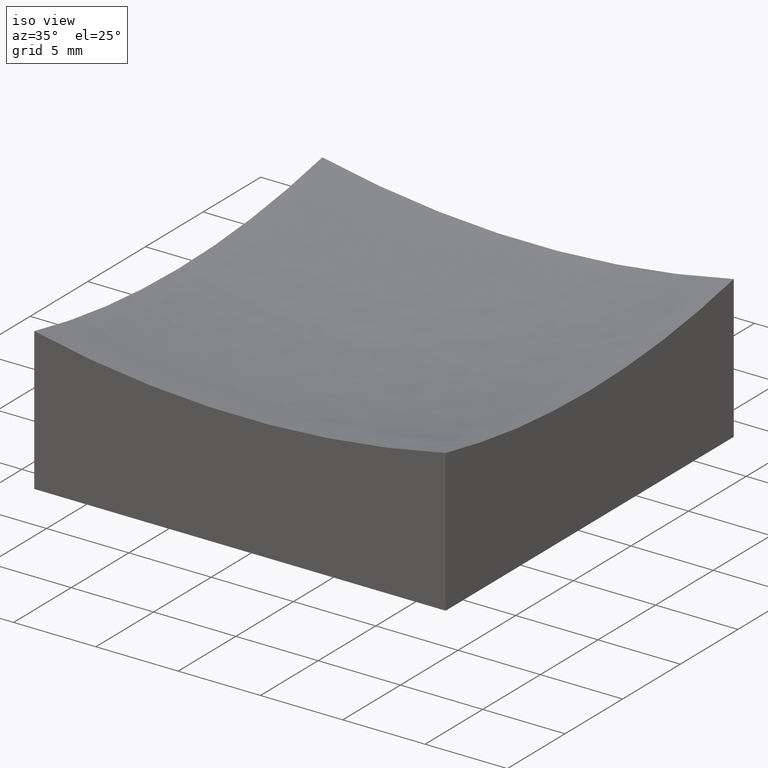
[diagram: clean part render]
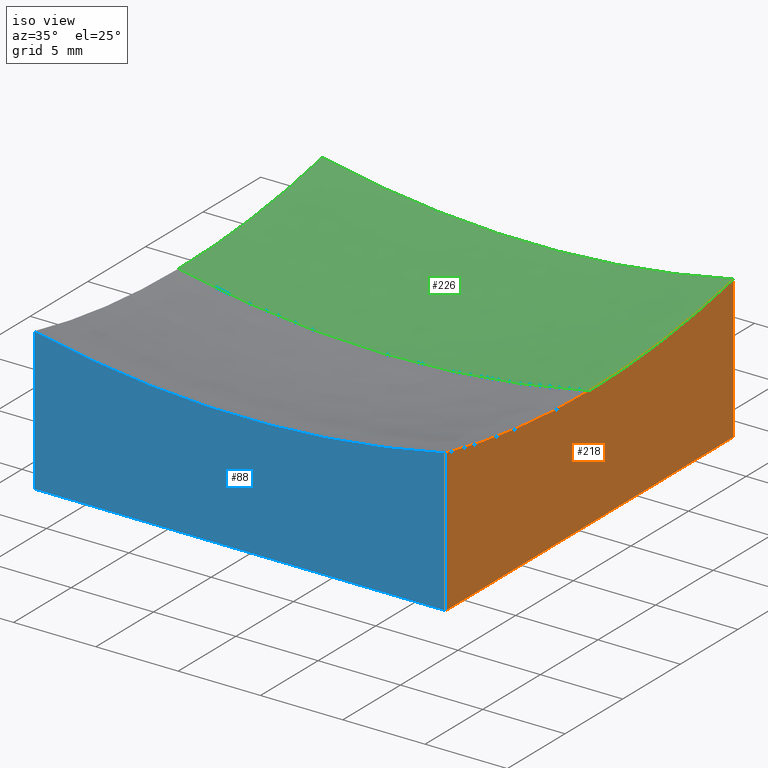
[diagram: same view with three faces highlighted in distinct colors, each labeled with its STEP entity id]
A machine part, iso view with three faces highlighted in distinct colors.
Their STEP definitions:

[orange] entity #218 — the highlighted planar face has unit normal (1, 0, -0).
#8 = EDGE_CURVE ( 'NONE', #87, #227, #148, .T. ) ;
#13 = DIRECTION ( 'NONE',  ( -0.0000000000000000000, -0.0000000000000000000, -1.000000000000000000 ) ) ;
#15 = DIRECTION ( 'NONE',  ( 1.000000000000000000, 1.387778780781445676E-16, -0.0000000000000000000 ) ) ;
#18 = EDGE_CURVE ( 'NONE', #227, #67, #65, .T. ) ;
#25 = CARTESIAN_POINT ( 'NONE',  ( 12.50000000000000000, 12.50000000000000000, 0.0000000000000000000 ) ) ;
#30 = ORIENTED_EDGE ( 'NONE', *, *, #92, .F. ) ;
#31 = CARTESIAN_POINT ( 'NONE',  ( 12.50000000000000000, 12.50000000000000000, 20.00000000000000000 ) ) ;
#32 = AXIS2_PLACEMENT_3D ( 'NONE', #160, #15, #171 ) ;
#36 = CARTESIAN_POINT ( 'NONE',  ( 12.50000000000000000, 12.50000000000000000, 20.00000000000000000 ) ) ;
#40 = CARTESIAN_POINT ( 'NONE',  ( 12.50000000000000355, -12.50000000000000000, 0.0000000000000000000 ) ) ;
#43 = VECTOR ( 'NONE', #111, 1000.000000000000000 ) ;
#46 = CARTESIAN_POINT ( 'NONE',  ( 12.50000000000000000, 12.50000000000000000, 0.0000000000000000000 ) ) ;
#47 = ORIENTED_EDGE ( 'NONE', *, *, #18, .F. ) ;
#55 = FACE_OUTER_BOUND ( 'NONE', #225, .T. ) ;
#63 = AXIS2_PLACEMENT_3D ( 'NONE', #192, #211, #78 ) ;
#65 = LINE ( 'NONE', #46, #43 ) ;
#67 = VERTEX_POINT ( 'NONE', #40 ) ;
#78 = DIRECTION ( 'NONE',  ( -1.478034093873817962E-16, 1.000000000000000000, 0.0000000000000000000 ) ) ;
#83 = CARTESIAN_POINT ( 'NONE',  ( 12.50000000000000355, -12.50000000000000000, 8.663275294101428159 ) ) ;
#87 = VERTEX_POINT ( 'NONE', #190 ) ;
#92 = EDGE_CURVE ( 'NONE', #229, #240, #206, .T. ) ;
#95 = AXIS2_PLACEMENT_3D ( 'NONE', #36, #197, #119 ) ;
#104 = CARTESIAN_POINT ( 'NONE',  ( 12.50000000000000355, -12.50000000000000000, 20.00000000000000000 ) ) ;
#105 = CARTESIAN_POINT ( 'NONE',  ( 12.50000000000000178, 0.0000000000000000000, 7.316527028472495253 ) ) ;
#107 = EDGE_CURVE ( 'NONE', #229, #67, #116, .T. ) ;
#111 = DIRECTION ( 'NONE',  ( 1.387778780781445676E-16, -1.000000000000000000, 0.0000000000000000000 ) ) ;
#112 = EDGE_CURVE ( 'NONE', #240, #87, #250, .T. ) ;
#115 = ORIENTED_EDGE ( 'NONE', *, *, #107, .T. ) ;
#116 = LINE ( 'NONE', #104, #216 ) ;
#119 = DIRECTION ( 'NONE',  ( -1.387778780781445676E-16, 1.000000000000000000, 0.0000000000000000000 ) ) ;
#131 = ORIENTED_EDGE ( 'NONE', *, *, #112, .F. ) ;
#146 = ORIENTED_EDGE ( 'NONE', *, *, #8, .F. ) ;
#148 = LINE ( 'NONE', #31, #180 ) ;
#160 = CARTESIAN_POINT ( 'NONE',  ( 12.50000000000000178, 1.734723475976806306E-15, 66.00000000000000000 ) ) ;
#171 = DIRECTION ( 'NONE',  ( -1.478034093873817962E-16, 1.000000000000000000, 0.0000000000000000000 ) ) ;
#180 = VECTOR ( 'NONE', #13, 1000.000000000000000 ) ;
#190 = CARTESIAN_POINT ( 'NONE',  ( 12.50000000000000000, 12.50000000000000000, 8.663275294101428159 ) ) ;
#192 = CARTESIAN_POINT ( 'NONE',  ( 12.50000000000000178, 1.734723475976806306E-15, 66.00000000000000000 ) ) ;
#197 = DIRECTION ( 'NONE',  ( 1.000000000000000000, 1.387778780781445676E-16, -0.0000000000000000000 ) ) ;
#206 = CIRCLE ( 'NONE', #63, 58.68347297152751452 ) ;
#211 = DIRECTION ( 'NONE',  ( 1.000000000000000000, 1.387778780781445676E-16, -0.0000000000000000000 ) ) ;
#212 = PLANE ( 'NONE',  #95 ) ;
#216 = VECTOR ( 'NONE', #230, 1000.000000000000000 ) ;
#218 = ADVANCED_FACE ( 'NONE', ( #55 ), #212, .T. ) ;
#225 = EDGE_LOOP ( 'NONE', ( #30, #115, #47, #146, #131 ) ) ;
#227 = VERTEX_POINT ( 'NONE', #25 ) ;
#229 = VERTEX_POINT ( 'NONE', #83 ) ;
#230 = DIRECTION ( 'NONE',  ( -0.0000000000000000000, -0.0000000000000000000, -1.000000000000000000 ) ) ;
#240 = VERTEX_POINT ( 'NONE', #105 ) ;
#250 = CIRCLE ( 'NONE', #32, 58.68347297152751452 ) ;

[blue] entity #88 — the highlighted planar face has unit normal (0, 1, 0).
#1 = DIRECTION ( 'NONE',  ( -0.0000000000000000000, -0.0000000000000000000, -1.000000000000000000 ) ) ;
#10 = AXIS2_PLACEMENT_3D ( 'NONE', #235, #80, #108 ) ;
#12 = EDGE_LOOP ( 'NONE', ( #48, #184, #168, #128 ) ) ;
#14 = CIRCLE ( 'NONE', #10, 58.68347297152751452 ) ;
#20 = AXIS2_PLACEMENT_3D ( 'NONE', #154, #209, #134 ) ;
#22 = FACE_OUTER_BOUND ( 'NONE', #12, .T. ) ;
#40 = CARTESIAN_POINT ( 'NONE',  ( 12.50000000000000355, -12.50000000000000000, 0.0000000000000000000 ) ) ;
#41 = CARTESIAN_POINT ( 'NONE',  ( -12.49999999999999645, -12.50000000000000000, 0.0000000000000000000 ) ) ;
#48 = ORIENTED_EDGE ( 'NONE', *, *, #107, .F. ) ;
#67 = VERTEX_POINT ( 'NONE', #40 ) ;
#72 = LINE ( 'NONE', #74, #86 ) ;
#74 = CARTESIAN_POINT ( 'NONE',  ( -12.49999999999999645, -12.50000000000000000, 20.00000000000000000 ) ) ;
#80 = DIRECTION ( 'NONE',  ( 0.0000000000000000000, 1.000000000000000000, 0.0000000000000000000 ) ) ;
#83 = CARTESIAN_POINT ( 'NONE',  ( 12.50000000000000355, -12.50000000000000000, 8.663275294101428159 ) ) ;
#86 = VECTOR ( 'NONE', #1, 1000.000000000000000 ) ;
#88 = ADVANCED_FACE ( 'NONE', ( #22 ), #118, .F. ) ;
#104 = CARTESIAN_POINT ( 'NONE',  ( 12.50000000000000355, -12.50000000000000000, 20.00000000000000000 ) ) ;
#107 = EDGE_CURVE ( 'NONE', #229, #67, #116, .T. ) ;
#108 = DIRECTION ( 'NONE',  ( 0.0000000000000000000, 0.0000000000000000000, 1.000000000000000000 ) ) ;
#116 = LINE ( 'NONE', #104, #216 ) ;
#118 = PLANE ( 'NONE',  #20 ) ;
#127 = EDGE_CURVE ( 'NONE', #238, #67, #195, .T. ) ;
#128 = ORIENTED_EDGE ( 'NONE', *, *, #127, .T. ) ;
#134 = DIRECTION ( 'NONE',  ( 0.0000000000000000000, -0.0000000000000000000, 1.000000000000000000 ) ) ;
#138 = CARTESIAN_POINT ( 'NONE',  ( -12.49999999999999645, -12.50000000000000000, 0.0000000000000000000 ) ) ;
#145 = VECTOR ( 'NONE', #214, 1000.000000000000000 ) ;
#154 = CARTESIAN_POINT ( 'NONE',  ( -12.49999999999999645, -12.50000000000000000, 20.00000000000000000 ) ) ;
#168 = ORIENTED_EDGE ( 'NONE', *, *, #191, .T. ) ;
#184 = ORIENTED_EDGE ( 'NONE', *, *, #252, .T. ) ;
#191 = EDGE_CURVE ( 'NONE', #201, #238, #72, .T. ) ;
#195 = LINE ( 'NONE', #138, #145 ) ;
#201 = VERTEX_POINT ( 'NONE', #232 ) ;
#209 = DIRECTION ( 'NONE',  ( 0.0000000000000000000, 1.000000000000000000, 0.0000000000000000000 ) ) ;
#214 = DIRECTION ( 'NONE',  ( 1.000000000000000000, 0.0000000000000000000, 0.0000000000000000000 ) ) ;
#216 = VECTOR ( 'NONE', #230, 1000.000000000000000 ) ;
#229 = VERTEX_POINT ( 'NONE', #83 ) ;
#230 = DIRECTION ( 'NONE',  ( -0.0000000000000000000, -0.0000000000000000000, -1.000000000000000000 ) ) ;
#232 = CARTESIAN_POINT ( 'NONE',  ( -12.49999999999999645, -12.50000000000000000, 8.663275294101428159 ) ) ;
#235 = CARTESIAN_POINT ( 'NONE',  ( 8.082668874372532400E-15, -12.50000000000000000, 66.00000000000000000 ) ) ;
#238 = VERTEX_POINT ( 'NONE', #41 ) ;
#252 = EDGE_CURVE ( 'NONE', #229, #201, #14, .T. ) ;

[green] entity #226 — the highlighted spherical surface has radius 60 mm.
#15 = DIRECTION ( 'NONE',  ( 1.000000000000000000, 1.387778780781445676E-16, -0.0000000000000000000 ) ) ;
#17 = CARTESIAN_POINT ( 'NONE',  ( -12.49999999999999822, -1.734723475976808278E-15, 66.00000000000000000 ) ) ;
#23 = DIRECTION ( 'NONE',  ( -0.0000000000000000000, 1.000000000000000000, 0.0000000000000000000 ) ) ;
#27 = ORIENTED_EDGE ( 'NONE', *, *, #44, .T. ) ;
#32 = AXIS2_PLACEMENT_3D ( 'NONE', #160, #15, #171 ) ;
#42 = FACE_OUTER_BOUND ( 'NONE', #236, .T. ) ;
#44 = EDGE_CURVE ( 'NONE', #87, #223, #164, .T. ) ;
#49 = AXIS2_PLACEMENT_3D ( 'NONE', #17, #234, #247 ) ;
#57 = CARTESIAN_POINT ( 'NONE',  ( 8.278698348036925657E-15, 0.0000000000000000000, 6.000000000000005329 ) ) ;
#87 = VERTEX_POINT ( 'NONE', #190 ) ;
#93 = ORIENTED_EDGE ( 'NONE', *, *, #181, .T. ) ;
#105 = CARTESIAN_POINT ( 'NONE',  ( 12.50000000000000178, 0.0000000000000000000, 7.316527028472495253 ) ) ;
#106 = CIRCLE ( 'NONE', #121, 60.00000000000000000 ) ;
#112 = EDGE_CURVE ( 'NONE', #240, #87, #250, .T. ) ;
#113 = DIRECTION ( 'NONE',  ( 0.0000000000000000000, 0.0000000000000000000, 1.000000000000000000 ) ) ;
#120 = CARTESIAN_POINT ( 'NONE',  ( -12.49999999999999645, 1.530808498934191916E-15, 7.316527028472495253 ) ) ;
#121 = AXIS2_PLACEMENT_3D ( 'NONE', #133, #248, #156 ) ;
#122 = DIRECTION ( 'NONE',  ( 1.224646799147353207E-16, 1.000000000000000000, -7.098687467539885897E-33 ) ) ;
#123 = DIRECTION ( 'NONE',  ( 1.000000000000000000, 0.0000000000000000000, 0.0000000000000000000 ) ) ;
#124 = VERTEX_POINT ( 'NONE', #57 ) ;
#133 = CARTESIAN_POINT ( 'NONE',  ( 8.082668874372532400E-15, 0.0000000000000000000, 66.00000000000000000 ) ) ;
#141 = AXIS2_PLACEMENT_3D ( 'NONE', #167, #246, #113 ) ;
#142 = CARTESIAN_POINT ( 'NONE',  ( 8.082668874372532400E-15, 0.0000000000000000000, 66.00000000000000000 ) ) ;
#156 = DIRECTION ( 'NONE',  ( 0.0000000000000000000, 0.0000000000000000000, -1.000000000000000000 ) ) ;
#158 = EDGE_CURVE ( 'NONE', #187, #223, #175, .T. ) ;
#160 = CARTESIAN_POINT ( 'NONE',  ( 12.50000000000000178, 1.734723475976806306E-15, 66.00000000000000000 ) ) ;
#164 = CIRCLE ( 'NONE', #141, 58.68347297152751452 ) ;
#167 = CARTESIAN_POINT ( 'NONE',  ( 8.082668874372532400E-15, 12.50000000000000000, 66.00000000000000000 ) ) ;
#171 = DIRECTION ( 'NONE',  ( -1.478034093873817962E-16, 1.000000000000000000, 0.0000000000000000000 ) ) ;
#175 = CIRCLE ( 'NONE', #49, 58.68347297152751452 ) ;
#178 = CARTESIAN_POINT ( 'NONE',  ( -12.50000000000000000, 12.50000000000000000, 8.663275294101428159 ) ) ;
#179 = SPHERICAL_SURFACE ( 'NONE', #189, 60.00000000000000000 ) ;
#181 = EDGE_CURVE ( 'NONE', #124, #240, #106, .T. ) ;
#182 = CIRCLE ( 'NONE', #228, 60.00000000000000000 ) ;
#187 = VERTEX_POINT ( 'NONE', #120 ) ;
#189 = AXIS2_PLACEMENT_3D ( 'NONE', #142, #23, #123 ) ;
#190 = CARTESIAN_POINT ( 'NONE',  ( 12.50000000000000000, 12.50000000000000000, 8.663275294101428159 ) ) ;
#200 = EDGE_CURVE ( 'NONE', #124, #187, #182, .T. ) ;
#204 = ORIENTED_EDGE ( 'NONE', *, *, #112, .T. ) ;
#207 = ORIENTED_EDGE ( 'NONE', *, *, #158, .F. ) ;
#215 = CARTESIAN_POINT ( 'NONE',  ( 8.082668874372532400E-15, 0.0000000000000000000, 66.00000000000000000 ) ) ;
#220 = ORIENTED_EDGE ( 'NONE', *, *, #200, .F. ) ;
#223 = VERTEX_POINT ( 'NONE', #178 ) ;
#226 = ADVANCED_FACE ( 'NONE', ( #42 ), #179, .F. ) ;
#228 = AXIS2_PLACEMENT_3D ( 'NONE', #215, #122, #231 ) ;
#231 = DIRECTION ( 'NONE',  ( -1.000000000000000000, 1.224646799147352961E-16, 0.0000000000000000000 ) ) ;
#234 = DIRECTION ( 'NONE',  ( 1.000000000000000000, 1.387778780781445676E-16, -0.0000000000000000000 ) ) ;
#236 = EDGE_LOOP ( 'NONE', ( #220, #93, #204, #27, #207 ) ) ;
#240 = VERTEX_POINT ( 'NONE', #105 ) ;
#246 = DIRECTION ( 'NONE',  ( 0.0000000000000000000, 1.000000000000000000, 0.0000000000000000000 ) ) ;
#247 = DIRECTION ( 'NONE',  ( -1.478034093873817962E-16, 1.000000000000000000, 0.0000000000000000000 ) ) ;
#248 = DIRECTION ( 'NONE',  ( 0.0000000000000000000, -1.000000000000000000, -0.0000000000000000000 ) ) ;
#250 = CIRCLE ( 'NONE', #32, 58.68347297152751452 ) ;